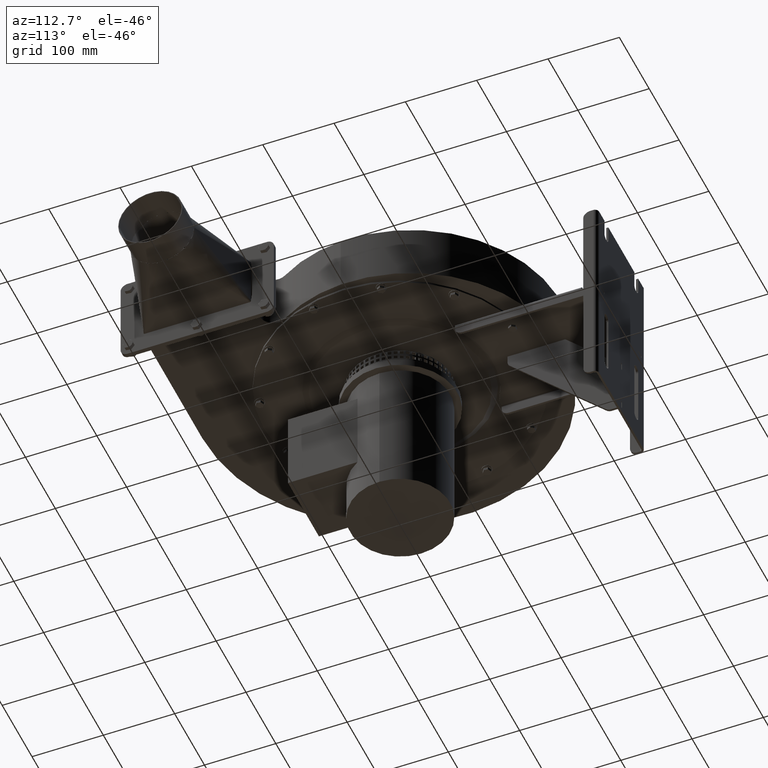
[diagram: clean part render]
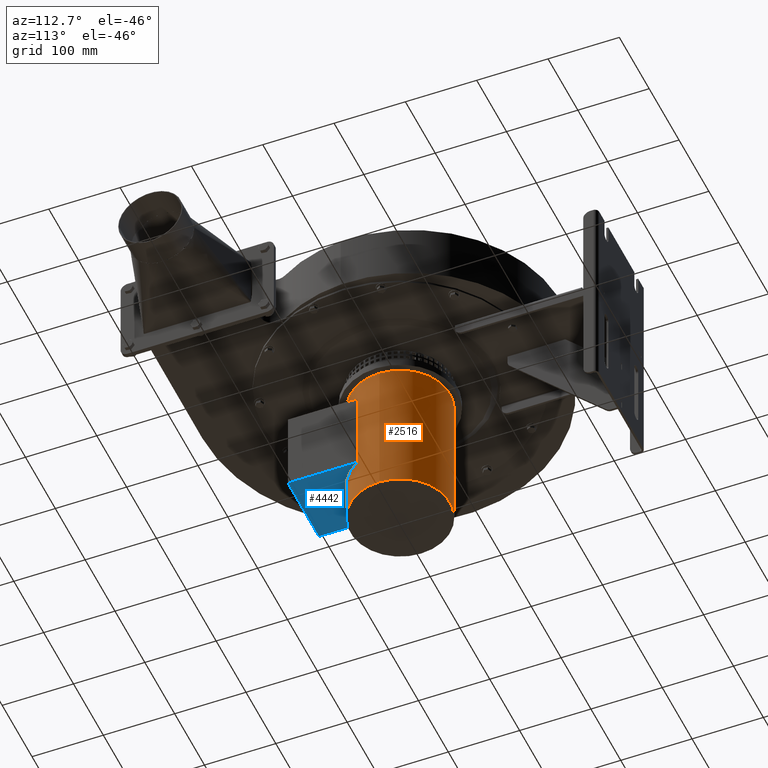
[diagram: same view with the hole feature highlighted: cylindrical wall and planar end face, labeled with their STEP entity ids]
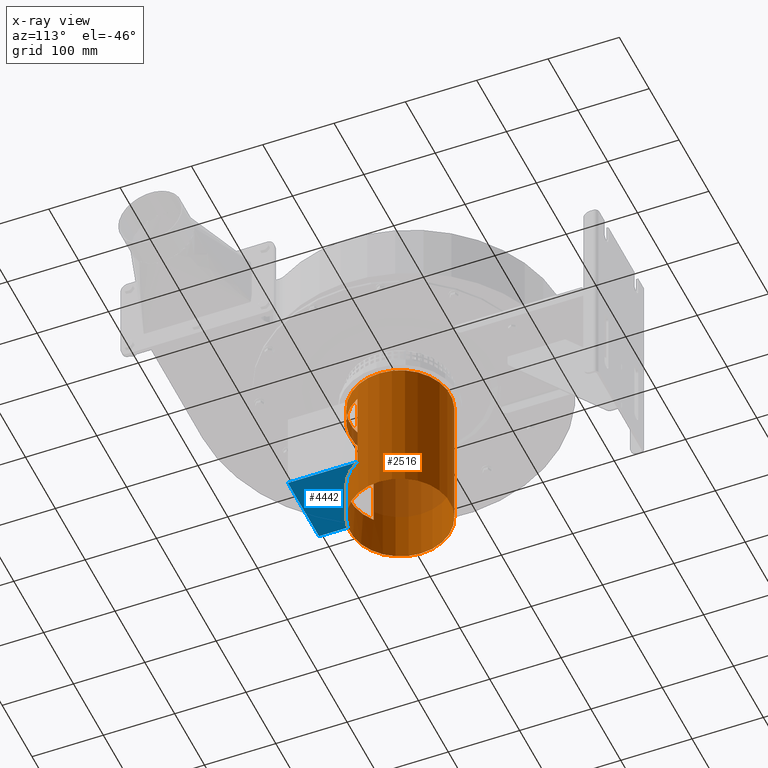
[diagram: x-ray of the same camera — body ghosted, the hole faces saturated]
A machine part, auxiliary view. The highlighted faces form one hole feature of diameter 140 mm: the cylindrical wall (entity #2516, orange) and its adjacent planar end face (entity #4442, blue) — they share a circular edge in the B-rep.
The next image is the same camera in x-ray (body ghosted, the hole faces saturated) — the bore reads through the body.
Wall:
#2516 = ADVANCED_FACE( 'NONE', ( #6410, #6411, #6412 ), #6413, .T. );
#6410 = FACE_OUTER_BOUND( '', #12775, .T. );
#6411 = FACE_OUTER_BOUND( '', #12776, .T. );
#6412 = FACE_BOUND( '', #12777, .T. );
#6413 = CYLINDRICAL_SURFACE( '', #12778, 70.0000000000000 );
#12775 = EDGE_LOOP( '', ( #20382 ) );
#12776 = EDGE_LOOP( '', ( #20383 ) );
#12777 = EDGE_LOOP( '', ( #20384, #20385, #20386, #20387 ) );
#12778 = AXIS2_PLACEMENT_3D( '', #20388, #20389, #20390 );
#20382 = ORIENTED_EDGE( '', *, *, #34865, .F. );
#20383 = ORIENTED_EDGE( '', *, *, #35452, .T. );
#20384 = ORIENTED_EDGE( '', *, *, #35453, .F. );
#20385 = ORIENTED_EDGE( '', *, *, #35454, .F. );
#20386 = ORIENTED_EDGE( '', *, *, #35455, .F. );
#20387 = ORIENTED_EDGE( '', *, *, #35456, .F. );
#20388 = CARTESIAN_POINT( '', ( 1.23602236341291E-075, 1.99236467153796E-029, -122.000000000000 ) );
#20389 = DIRECTION( '', ( -6.11892259115303E-078, 0.000000000000000, -1.00000000000000 ) );
#20390 = DIRECTION( '', ( 0.000000000000000, 1.00000000000000, 0.000000000000000 ) );
#34865 = EDGE_CURVE( 'NONE', #40937, #40937, #40938, .T. );
#35452 = EDGE_CURVE( 'NONE', #41970, #41970, #41971, .T. );
#35453 = EDGE_CURVE( 'NONE', #41972, #41973, #41974, .T. );
#35454 = EDGE_CURVE( 'NONE', #41975, #41972, #41976, .T. );
#35455 = EDGE_CURVE( 'NONE', #41977, #41975, #41978, .T. );
#35456 = EDGE_CURVE( 'NONE', #41973, #41977, #41979, .T. );
#40937 = VERTEX_POINT( '', #49752 );
#40938 = CIRCLE( '', #49753, 70.0000000000000 );
#41970 = VERTEX_POINT( '', #51409 );
#41971 = CIRCLE( '', #51410, 70.0000000000000 );
#41972 = VERTEX_POINT( 'NONE', #51411 );
#41973 = VERTEX_POINT( 'NONE', #51412 );
#41974 = CIRCLE( '', #51413, 70.0000000000000 );
#41975 = VERTEX_POINT( 'NONE', #51414 );
#41976 = LINE( '', #51415, #51416 );
#41977 = VERTEX_POINT( 'NONE', #51417 );
#41978 = CIRCLE( '', #51418, 70.0000000000000 );
#41979 = LINE( '', #51419, #51420 );
#49752 = CARTESIAN_POINT( '', ( 70.0000000000000, 1.99236467153796E-029, -122.000000000000 ) );
#49753 = AXIS2_PLACEMENT_3D( '', #64573, #64574, #64575 );
#51409 = CARTESIAN_POINT( '', ( 70.0000000000000, 5.54667823983524E-029, -324.000000000000 ) );
#51410 = AXIS2_PLACEMENT_3D( '', #65309, #65310, #65311 );
#51411 = CARTESIAN_POINT( '', ( 61.0000000000153, -34.3365694267517, -147.000000000000 ) );
#51412 = CARTESIAN_POINT( '', ( -42.9999999999937, -55.2358579185709, -147.000000000000 ) );
#51413 = AXIS2_PLACEMENT_3D( '', #65312, #65313, #65314 );
#51414 = CARTESIAN_POINT( '', ( 61.0000000000153, -34.3365694267516, -265.000000000000 ) );
#51415 = CARTESIAN_POINT( '', ( 61.0000000000153, -34.3365694267516, -122.000000000000 ) );
#51416 = VECTOR( '', #65315, 1000.00000000000 );
#51417 = CARTESIAN_POINT( '', ( -42.9999999999937, -55.2358579185709, -265.000000000000 ) );
#51418 = AXIS2_PLACEMENT_3D( '', #65316, #65317, #65318 );
#51419 = CARTESIAN_POINT( '', ( -42.9999999999937, -55.2358579185709, -122.000000000000 ) );
#51420 = VECTOR( '', #65319, 1000.00000000000 );
#64573 = CARTESIAN_POINT( '', ( 1.23602236341291E-075, 1.99236467153796E-029, -122.000000000000 ) );
#64574 = DIRECTION( '', ( 0.000000000000000, -1.75956117242440E-031, 1.00000000000000 ) );
#64575 = DIRECTION( '', ( 1.00000000000000, 0.000000000000000, 0.000000000000000 ) );
#65309 = CARTESIAN_POINT( '', ( 0.000000000000000, 5.54667823983524E-029, -324.000000000000 ) );
#65310 = DIRECTION( '', ( 0.000000000000000, -1.75956117242440E-031, 1.00000000000000 ) );
#65311 = DIRECTION( '', ( 1.00000000000000, 0.000000000000000, 0.000000000000000 ) );
#65312 = CARTESIAN_POINT( '', ( 1.08304929863409E-075, 1.99236467153796E-029, -147.000000000000 ) );
#65313 = DIRECTION( '', ( -1.56280426148960E-046, 1.38804901927045E-061, -1.00000000000000 ) );
#65314 = DIRECTION( '', ( -8.88178419700125E-016, -1.00000000000000, 2.24540382432456E-076 ) );
#65315 = DIRECTION( '', ( 6.11892259115303E-078, 0.000000000000000, 1.00000000000000 ) );
#65316 = CARTESIAN_POINT( '', ( 3.61016432878028E-076, 1.99236467153796E-029, -265.000000000000 ) );
#65317 = DIRECTION( '', ( 0.000000000000000, -2.15016135161514E-031, 1.00000000000000 ) );
#65318 = DIRECTION( '', ( -1.00000000000000, 0.000000000000000, 0.000000000000000 ) );
#65319 = DIRECTION( '', ( -6.11892259115303E-078, 0.000000000000000, -1.00000000000000 ) );
End face:
#4442 = ADVANCED_FACE( 'NONE', ( #10016 ), #10017, .T. );
#10016 = FACE_OUTER_BOUND( '', #16571, .T. );
#10017 = PLANE( '', #16572 );
#16571 = EDGE_LOOP( '', ( #29425, #29426, #29427, #29428 ) );
#16572 = AXIS2_PLACEMENT_3D( '', #29429, #29430, #29431 );
#29425 = ORIENTED_EDGE( '', *, *, #35124, .T. );
#29426 = ORIENTED_EDGE( '', *, *, #35746, .T. );
#29427 = ORIENTED_EDGE( '', *, *, #35455, .T. );
#29428 = ORIENTED_EDGE( '', *, *, #39624, .T. );
#29429 = CARTESIAN_POINT( '', ( -42.9999999999847, -132.000000000005, -265.000000000000 ) );
#29430 = DIRECTION( '', ( -1.97636074437524E-016, 2.15016135161514E-031, -1.00000000000000 ) );
#29431 = DIRECTION( '', ( -1.00000000000000, 0.000000000000000, 1.97636074437524E-016 ) );
#35124 = EDGE_CURVE( 'NONE', #41395, #41392, #41396, .T. );
#35455 = EDGE_CURVE( 'NONE', #41977, #41975, #41978, .T. );
#35746 = EDGE_CURVE( 'NONE', #41392, #41977, #42465, .T. );
#39624 = EDGE_CURVE( 'NONE', #41975, #41395, #48425, .T. );
#41392 = VERTEX_POINT( 'NONE', #50565 );
#41395 = VERTEX_POINT( 'NONE', #50569 );
#41396 = LINE( '', #50570, #50571 );
#41975 = VERTEX_POINT( 'NONE', #51414 );
#41977 = VERTEX_POINT( 'NONE', #51417 );
#41978 = CIRCLE( '', #51418, 70.0000000000000 );
#42465 = LINE( '', #52386, #52387 );
#48425 = LINE( '', #62293, #62294 );
#50565 = CARTESIAN_POINT( '', ( -42.9999999999847, -131.999999999997, -265.000000000000 ) );
#50569 = CARTESIAN_POINT( '', ( 61.0000000000074, -131.999999999993, -265.000000000000 ) );
#50570 = CARTESIAN_POINT( '', ( -42.9999999999847, -131.999999999993, -265.000000000000 ) );
#50571 = VECTOR( '', #64854, 1000.00000000000 );
#51414 = CARTESIAN_POINT( '', ( 61.0000000000153, -34.3365694267516, -265.000000000000 ) );
#51417 = CARTESIAN_POINT( '', ( -42.9999999999937, -55.2358579185709, -265.000000000000 ) );
#51418 = AXIS2_PLACEMENT_3D( '', #65316, #65317, #65318 );
#52386 = CARTESIAN_POINT( '', ( -42.9999999999847, -132.000000000005, -265.000000000000 ) );
#52387 = VECTOR( '', #65626, 1000.00000000000 );
#62293 = CARTESIAN_POINT( '', ( 61.0000000000035, -132.000000000005, -265.000000000000 ) );
#62294 = VECTOR( '', #70483, 1000.00000000000 );
#64854 = DIRECTION( '', ( -1.00000000000000, 0.000000000000000, 1.97636074437524E-016 ) );
#65316 = CARTESIAN_POINT( '', ( 3.61016432878028E-076, 1.99236467153796E-029, -265.000000000000 ) );
#65317 = DIRECTION( '', ( 0.000000000000000, -2.15016135161514E-031, 1.00000000000000 ) );
#65318 = DIRECTION( '', ( -1.00000000000000, 0.000000000000000, 0.000000000000000 ) );
#65626 = DIRECTION( '', ( 4.24949448940497E-047, 1.00000000000000, 2.15016135161514E-031 ) );
#70483 = DIRECTION( '', ( -4.24949448940497E-047, -1.00000000000000, -2.15016135161514E-031 ) );